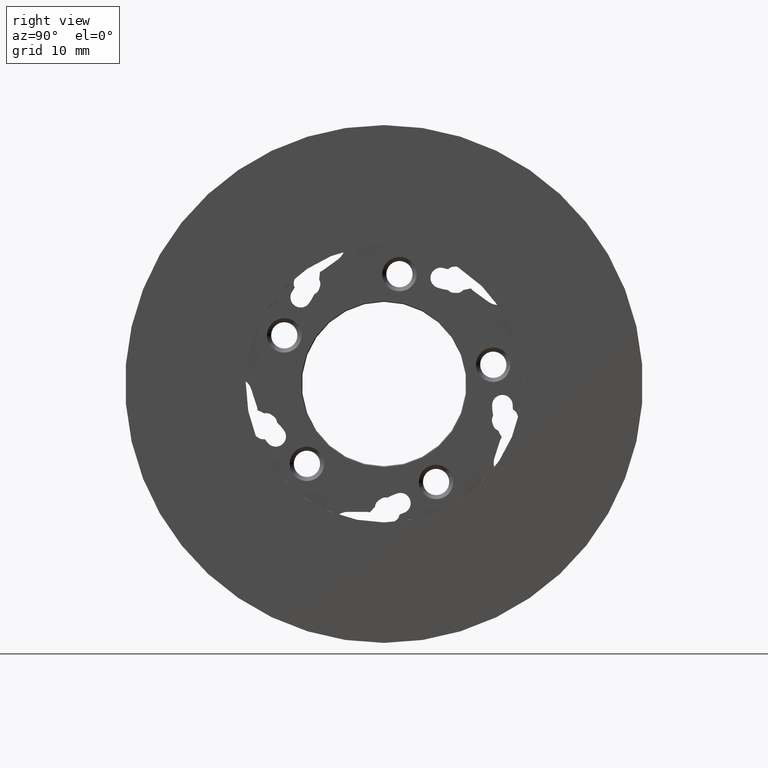
[diagram: clean part render]
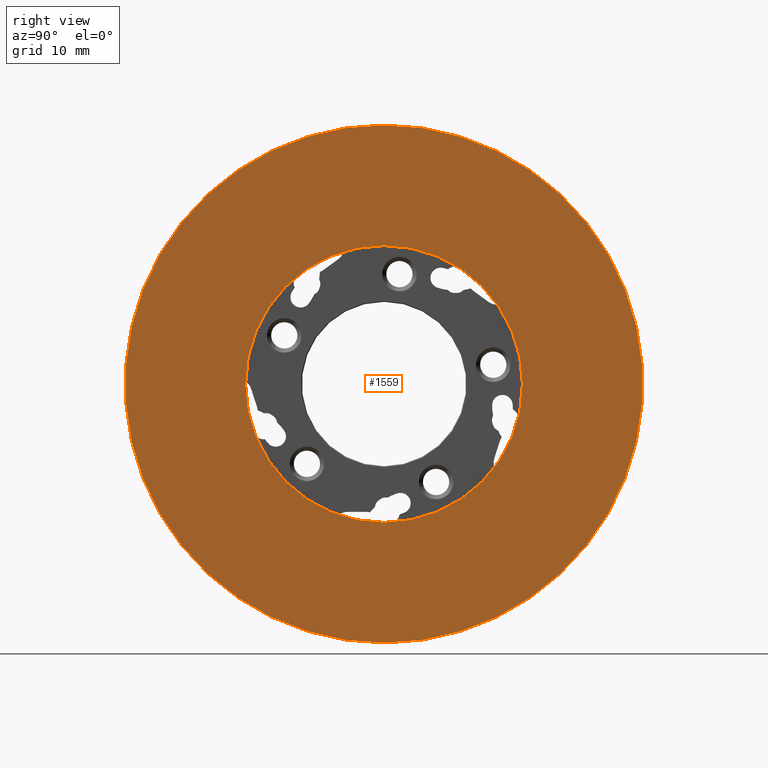
[diagram: same view with one face highlighted and labeled with its STEP entity id]
A machine part, right view. The second image highlights one B-rep face of the part: STEP entity #1559.
In plain terms, the highlighted planar face has unit normal (-1, 0, 0).
Its self-contained STEP definition (entity closure, byte-faithful):
#76 = AXIS2_PLACEMENT_3D ( 'NONE', #1144, #1424, #869 ) ;
#108 = CARTESIAN_POINT ( 'NONE',  ( 0.2502733699999998840, 0.0000000000000000000, -31.50000000000000000 ) ) ;
#119 = EDGE_CURVE ( 'NONE', #2843, #2560, #1277, .T. ) ;
#431 = CIRCLE ( 'NONE', #76, 16.84397186645439248 ) ;
#513 = AXIS2_PLACEMENT_3D ( 'NONE', #2720, #3343, #1199 ) ;
#614 = DIRECTION ( 'NONE',  ( 0.0000000000000000000, 0.0000000000000000000, -1.000000000000000000 ) ) ;
#680 = AXIS2_PLACEMENT_3D ( 'NONE', #2145, #2722, #614 ) ;
#869 = DIRECTION ( 'NONE',  ( 0.0000000000000000000, 0.0000000000000000000, -1.000000000000000000 ) ) ;
#879 = PLANE ( 'NONE',  #3257 ) ;
#903 = VERTEX_POINT ( 'NONE', #3288 ) ;
#966 = ORIENTED_EDGE ( 'NONE', *, *, #119, .T. ) ;
#1113 = FACE_OUTER_BOUND ( 'NONE', #2975, .T. ) ;
#1144 = CARTESIAN_POINT ( 'NONE',  ( 0.2502733699999981631, 0.0000000000000000000, 0.0000000000000000000 ) ) ;
#1199 = DIRECTION ( 'NONE',  ( 0.0000000000000000000, 0.0000000000000000000, -1.000000000000000000 ) ) ;
#1265 = CARTESIAN_POINT ( 'NONE',  ( 0.2502733699999981631, 2.062791623118144150E-15, 16.84397186645439248 ) ) ;
#1277 = CIRCLE ( 'NONE', #513, 31.50000000000000000 ) ;
#1320 = ORIENTED_EDGE ( 'NONE', *, *, #3346, .T. ) ;
#1322 = EDGE_LOOP ( 'NONE', ( #2039, #2605 ) ) ;
#1424 = DIRECTION ( 'NONE',  ( 1.000000000000000000, -0.0000000000000000000, -0.0000000000000000000 ) ) ;
#1559 = ADVANCED_FACE ( 'NONE', ( #1776, #1113 ), #879, .F. ) ;
#1587 = CIRCLE ( 'NONE', #2371, 31.50000000000000000 ) ;
#1776 = FACE_BOUND ( 'NONE', #1322, .T. ) ;
#1984 = DIRECTION ( 'NONE',  ( -1.000000000000000000, 0.0000000000000000000, 0.0000000000000000000 ) ) ;
#2039 = ORIENTED_EDGE ( 'NONE', *, *, #3213, .F. ) ;
#2145 = CARTESIAN_POINT ( 'NONE',  ( 0.2502733699999981631, 0.0000000000000000000, 0.0000000000000000000 ) ) ;
#2176 = DIRECTION ( 'NONE',  ( 0.0000000000000000000, 0.0000000000000000000, -1.000000000000000000 ) ) ;
#2218 = CIRCLE ( 'NONE', #680, 16.84397186645439248 ) ;
#2236 = CARTESIAN_POINT ( 'NONE',  ( 0.2502733699999998840, 3.857637417314162689E-15, 31.50000000000000000 ) ) ;
#2371 = AXIS2_PLACEMENT_3D ( 'NONE', #3119, #2805, #2176 ) ;
#2560 = VERTEX_POINT ( 'NONE', #108 ) ;
#2605 = ORIENTED_EDGE ( 'NONE', *, *, #3147, .F. ) ;
#2720 = CARTESIAN_POINT ( 'NONE',  ( 0.2502733699999998840, 0.0000000000000000000, 0.0000000000000000000 ) ) ;
#2722 = DIRECTION ( 'NONE',  ( 1.000000000000000000, -0.0000000000000000000, -0.0000000000000000000 ) ) ;
#2805 = DIRECTION ( 'NONE',  ( 1.000000000000000000, -0.0000000000000000000, -0.0000000000000000000 ) ) ;
#2843 = VERTEX_POINT ( 'NONE', #2236 ) ;
#2975 = EDGE_LOOP ( 'NONE', ( #1320, #966 ) ) ;
#3119 = CARTESIAN_POINT ( 'NONE',  ( 0.2502733699999998840, 0.0000000000000000000, 0.0000000000000000000 ) ) ;
#3147 = EDGE_CURVE ( 'NONE', #3323, #903, #431, .T. ) ;
#3213 = EDGE_CURVE ( 'NONE', #903, #3323, #2218, .T. ) ;
#3257 = AXIS2_PLACEMENT_3D ( 'NONE', #3856, #1984, #3844 ) ;
#3288 = CARTESIAN_POINT ( 'NONE',  ( 0.2502733699999981631, 0.0000000000000000000, -16.84397186645439248 ) ) ;
#3323 = VERTEX_POINT ( 'NONE', #1265 ) ;
#3343 = DIRECTION ( 'NONE',  ( 1.000000000000000000, -0.0000000000000000000, -0.0000000000000000000 ) ) ;
#3346 = EDGE_CURVE ( 'NONE', #2560, #2843, #1587, .T. ) ;
#3844 = DIRECTION ( 'NONE',  ( 0.0000000000000000000, 0.0000000000000000000, 1.000000000000000000 ) ) ;
#3856 = CARTESIAN_POINT ( 'NONE',  ( 0.2502733699999989403, -16.84397186645439248, 0.0000000000000000000 ) ) ;